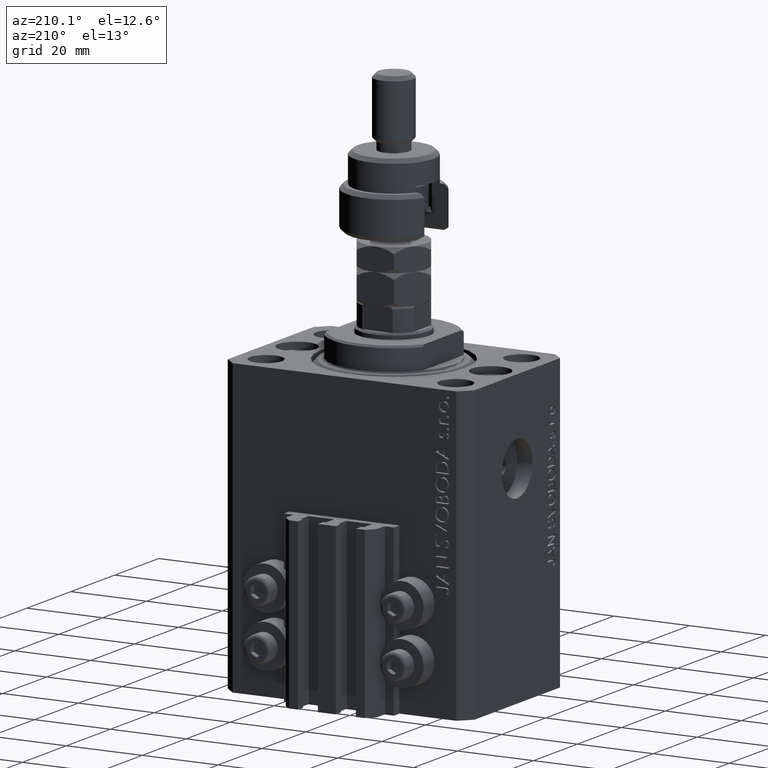
[diagram: clean part render]
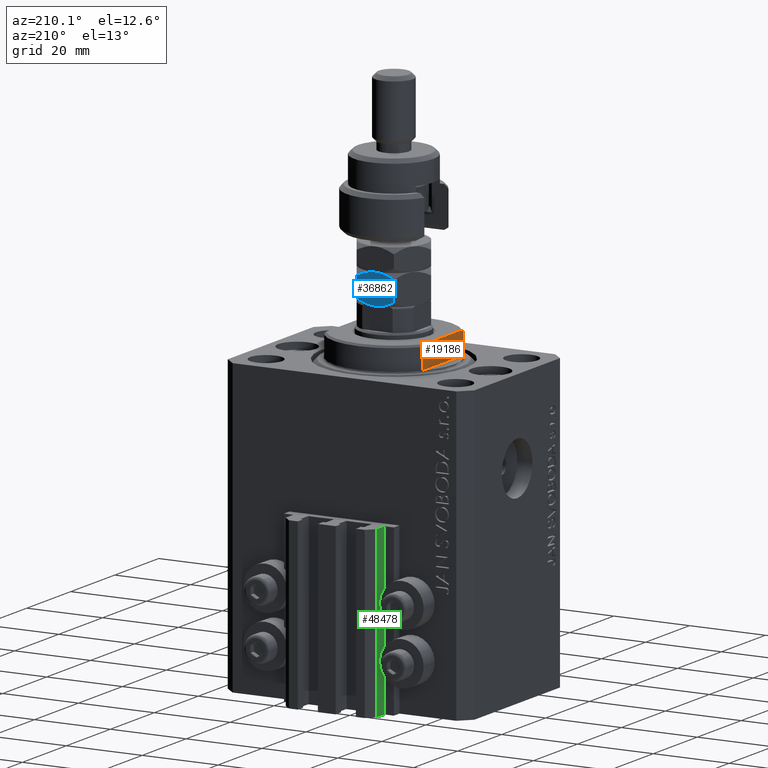
[diagram: same view with three faces highlighted in distinct colors, each labeled with its STEP entity id]
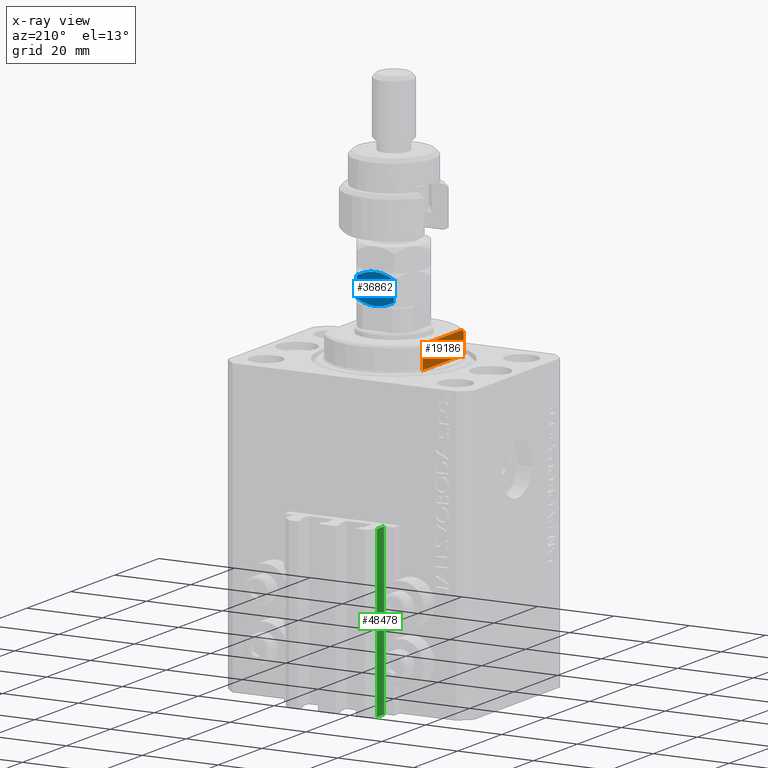
[diagram: x-ray of the same camera — body ghosted, the three highlighted faces saturated]
A machine part, auxiliary view with three faces highlighted in distinct colors.
The next image is the same camera in x-ray (body ghosted, the three faces saturated) — at least one of them is partly hidden behind the body in this view.
Their STEP definitions:

[orange] entity #19186 — the highlighted planar face has unit normal (-1, 0, 0).
#354 = CARTESIAN_POINT ( 'NONE',  ( 13.00000000000000000, -43.08131845707602992, -0.4999999999999995559 ) ) ;
#688 = VERTEX_POINT ( 'NONE', #28903 ) ;
#1208 = CARTESIAN_POINT ( 'NONE',  ( 13.00000000000000000, -9.327379053088815652, -6.000000000000030198 ) ) ;
#1632 = VECTOR ( 'NONE', #17485, 1000.000000000000000 ) ;
#4582 = CARTESIAN_POINT ( 'NONE',  ( 13.00000000000000000, -8.440971508067137918, -6.500000000000000000 ) ) ;
#6574 = CARTESIAN_POINT ( 'NONE',  ( 13.00000000000000000, -9.034292940839595332, -6.170857829009071871 ) ) ;
#7661 = LINE ( 'NONE', #23116, #10543 ) ;
#9709 = AXIS2_PLACEMENT_3D ( 'NONE', #43883, #28729, #43138 ) ;
#9865 = CARTESIAN_POINT ( 'NONE',  ( 13.00000000000000000, -9.327379053088815652, -6.000000000000030198 ) ) ;
#10543 = VECTOR ( 'NONE', #46363, 1000.000000000000000 ) ;
#13291 = CARTESIAN_POINT ( 'NONE',  ( 13.00000000000000000, 9.327379053088815652, -0.4999999999999995559 ) ) ;
#14309 = EDGE_CURVE ( 'NONE', #15881, #24672, #31762, .T. ) ;
#14522 = CARTESIAN_POINT ( 'NONE',  ( 13.00000000000000000, 8.738667591047022398, -6.337881022290552835 ) ) ;
#15881 = VERTEX_POINT ( 'NONE', #13291 ) ;
#15995 = EDGE_CURVE ( 'NONE', #688, #29632, #26341, .T. ) ;
#17485 = DIRECTION ( 'NONE',  ( 0.000000000000000000, -1.000000000000000000, -0.000000000000000000 ) ) ;
#19186 = ADVANCED_FACE ( 'NONE', ( #36066 ), #39605, .T. ) ;
#19289 = CARTESIAN_POINT ( 'NONE',  ( 13.00000000000000000, 9.327379053088813876, -6.500000000000000000 ) ) ;
#19475 = EDGE_CURVE ( 'NONE', #24672, #33529, #7661, .T. ) ;
#20022 = CARTESIAN_POINT ( 'NONE',  ( 13.00000000000000000, -8.738941625005656633, -6.337731789204291033 ) ) ;
#20787 = ORIENTED_EDGE ( 'NONE', *, *, #37887, .T. ) ;
#23116 = CARTESIAN_POINT ( 'NONE',  ( 13.00000000000000000, -9.327379053088813876, -6.500000000000000000 ) ) ;
#23145 = CARTESIAN_POINT ( 'NONE',  ( 13.00000000000000000, -8.440971508067137918, -6.500000000000000000 ) ) ;
#24672 = VERTEX_POINT ( 'NONE', #28682 ) ;
#26327 = EDGE_LOOP ( 'NONE', ( #20787, #32521, #42665, #47811, #49621, #35645 ) ) ;
#26341 = B_SPLINE_CURVE_WITH_KNOTS ( 'NONE', 3,
 ( #49173, #33045, #14522, #40627 ),
 .UNSPECIFIED., .F., .F.,
 ( 4, 4 ),
 ( 0.03031084603841415620, 0.03132841702658697297 ),
 .UNSPECIFIED. ) ;
#28682 = CARTESIAN_POINT ( 'NONE',  ( 13.00000000000000000, -9.327379053088815652, -0.4999999999999995559 ) ) ;
#28729 = DIRECTION ( 'NONE',  ( 1.000000000000000000, 0.000000000000000000, -0.000000000000000000 ) ) ;
#28903 = CARTESIAN_POINT ( 'NONE',  ( 13.00000000000000000, 9.327379053088916905, -6.000000000000021316 ) ) ;
#29632 = VERTEX_POINT ( 'NONE', #35983 ) ;
#31762 = LINE ( 'NONE', #354, #49142 ) ;
#32176 = VECTOR ( 'NONE', #34740, 1000.000000000000000 ) ;
#32521 = ORIENTED_EDGE ( 'NONE', *, *, #14309, .T. ) ;
#33045 = CARTESIAN_POINT ( 'NONE',  ( 13.00000000000000000, 9.034035639617135516, -6.171007825636153576 ) ) ;
#33529 = VERTEX_POINT ( 'NONE', #1208 ) ;
#34740 = DIRECTION ( 'NONE',  ( -0.000000000000000000, -0.000000000000000000, 1.000000000000000000 ) ) ;
#35645 = ORIENTED_EDGE ( 'NONE', *, *, #15995, .F. ) ;
#35793 = DIRECTION ( 'NONE',  ( 0.000000000000000000, -1.000000000000000000, -0.000000000000000000 ) ) ;
#35983 = CARTESIAN_POINT ( 'NONE',  ( 13.00000000000000000, 8.440971508067137918, -6.500000000000000000 ) ) ;
#36066 = FACE_OUTER_BOUND ( 'NONE', #26327, .T. ) ;
#36812 = B_SPLINE_CURVE_WITH_KNOTS ( 'NONE', 3,
 ( #4582, #20022, #6574, #9865 ),
 .UNSPECIFIED., .F., .F.,
 ( 4, 4 ),
 ( 0.04915043732154494860, 0.05017913261572036487 ),
 .UNSPECIFIED. ) ;
#37887 = EDGE_CURVE ( 'NONE', #688, #15881, #38517, .T. ) ;
#38517 = LINE ( 'NONE', #19289, #32176 ) ;
#39605 = PLANE ( 'NONE',  #9709 ) ;
#40273 = LINE ( 'NONE', #47351, #1632 ) ;
#40627 = CARTESIAN_POINT ( 'NONE',  ( 13.00000000000000000, 8.440971508067137918, -6.500000000000000000 ) ) ;
#42665 = ORIENTED_EDGE ( 'NONE', *, *, #19475, .T. ) ;
#43138 = DIRECTION ( 'NONE',  ( -0.000000000000000000, 0.000000000000000000, -1.000000000000000000 ) ) ;
#43473 = EDGE_CURVE ( 'NONE', #29632, #48466, #40273, .T. ) ;
#43883 = CARTESIAN_POINT ( 'NONE',  ( 13.00000000000000000, -43.08131845707602992, -0.4999999999999995559 ) ) ;
#46363 = DIRECTION ( 'NONE',  ( 0.000000000000000000, 0.000000000000000000, -1.000000000000000000 ) ) ;
#47351 = CARTESIAN_POINT ( 'NONE',  ( 13.00000000000000000, -43.08131845707602992, -6.500000000000000000 ) ) ;
#47483 = EDGE_CURVE ( 'NONE', #48466, #33529, #36812, .T. ) ;
#47811 = ORIENTED_EDGE ( 'NONE', *, *, #47483, .F. ) ;
#48466 = VERTEX_POINT ( 'NONE', #23145 ) ;
#49142 = VECTOR ( 'NONE', #35793, 1000.000000000000000 ) ;
#49173 = CARTESIAN_POINT ( 'NONE',  ( 13.00000000000000000, 9.327379053088916905, -6.000000000000021316 ) ) ;
#49621 = ORIENTED_EDGE ( 'NONE', *, *, #43473, .F. ) ;

[blue] entity #36862 — the highlighted planar face has unit normal (0, -1, 0).
#972 = EDGE_CURVE ( 'NONE', #14153, #40123, #23296, .T. ) ;
#1660 = CARTESIAN_POINT ( 'NONE',  ( -4.249999999999994671, 7.361215932167727516, 8.000000000000000000 ) ) ;
#2192 = CARTESIAN_POINT ( 'NONE',  ( -4.249999999999996447, 7.361215932167731957, 0.000000000000000000 ) ) ;
#2389 = CARTESIAN_POINT ( 'NONE',  ( -3.499970675361005590, 7.794245564648163871, 7.966263250401637741 ) ) ;
#2647 = CARTESIAN_POINT ( 'NONE',  ( 0.000000000000000000, 9.814954576223636096, 8.000000000000000000 ) ) ;
#3907 = CARTESIAN_POINT ( 'NONE',  ( -1.350892646810552433, 9.035016342941277756, 0.6009384127361191430 ) ) ;
#4696 = B_SPLINE_CURVE_WITH_KNOTS ( 'NONE', 3,
 ( #30759, #42378, #23156, #3907, #17237, #25331 ),
 .UNSPECIFIED., .F., .F.,
 ( 4, 2, 4 ),
 ( 0.005087299150080244227, 0.007613005268011861781, 0.01013871138594347847 ),
 .UNSPECIFIED. ) ;
#5675 = CARTESIAN_POINT ( 'NONE',  ( -4.249999999999994671, 7.361215932167727516, 8.000000000000000000 ) ) ;
#6735 = CARTESIAN_POINT ( 'NONE',  ( -8.500000000000001776, 4.907477288111821601, 1.314954576223634097 ) ) ;
#9482 = CARTESIAN_POINT ( 'NONE',  ( -2.175848833159079736E-16, 9.814954576223636096, 6.685045423776372786 ) ) ;
#9524 = CARTESIAN_POINT ( 'NONE',  ( 1.960053746949402388E-16, 9.814954576223636096, 1.314954576223628546 ) ) ;
#9980 = CARTESIAN_POINT ( 'NONE',  ( -2.407069963478076779, 8.425232084851307590, 7.746375910675348919 ) ) ;
#10610 = EDGE_CURVE ( 'NONE', #14153, #22663, #17318, .T. ) ;
#10666 = EDGE_CURVE ( 'NONE', #31144, #34372, #40370, .T. ) ;
#10735 = PLANE ( 'NONE',  #22431 ) ;
#11025 = CARTESIAN_POINT ( 'NONE',  ( -7.151994807070144233, 5.685748449118888104, 0.6032092124201268168 ) ) ;
#11562 = VECTOR ( 'NONE', #47048, 1000.000000000000000 ) ;
#11894 = VECTOR ( 'NONE', #13523, 1000.000000000000000 ) ;
#13523 = DIRECTION ( 'NONE',  ( -0.000000000000000000, -0.000000000000000000, -1.000000000000000000 ) ) ;
#14075 = CARTESIAN_POINT ( 'NONE',  ( -5.733718739115173157, 6.504590518737894733, 0.1608217079418319817 ) ) ;
#14153 = VERTEX_POINT ( 'NONE', #37080 ) ;
#14549 = CARTESIAN_POINT ( 'NONE',  ( -4.989245346831672201, 6.934412432177284202, 8.000000000000005329 ) ) ;
#15303 = CARTESIAN_POINT ( 'NONE',  ( -8.500000000000001776, 4.907477288111821601, 6.685045423776368345 ) ) ;
#17237 = CARTESIAN_POINT ( 'NONE',  ( -0.6656893889372521578, 9.430618628324037189, 0.9306186283239277213 ) ) ;
#17318 = B_SPLINE_CURVE_WITH_KNOTS ( 'NONE', 3,
 ( #9482, #21138, #37068, #9980, #20887, #2389, #28750, #1660 ),
 .UNSPECIFIED., .F., .F.,
 ( 4, 2, 2, 4 ),
 ( 2.544313836662431582E-07, 0.002543776790731950600, 0.003815537970406090908, 0.005087299150080232084 ),
 .UNSPECIFIED. ) ;
#17335 = EDGE_LOOP ( 'NONE', ( #41702, #18346, #27176, #17498, #32888, #47565 ) ) ;
#17498 = ORIENTED_EDGE ( 'NONE', *, *, #10610, .F. ) ;
#18346 = ORIENTED_EDGE ( 'NONE', *, *, #10666, .F. ) ;
#20887 = CARTESIAN_POINT ( 'NONE',  ( -2.766281260884825510, 8.217841345597568292, 7.839178292058173625 ) ) ;
#20927 = VERTEX_POINT ( 'NONE', #41517 ) ;
#21138 = CARTESIAN_POINT ( 'NONE',  ( -0.6664608216042845479, 9.430173241466064837, 7.069826758533944044 ) ) ;
#21400 = DIRECTION ( 'NONE',  ( 0.8660254037844389297, 0.4999999999999995559, 0.000000000000000000 ) ) ;
#21933 = CARTESIAN_POINT ( 'NONE',  ( -6.092930036521920556, 6.297199779484152771, 0.2536240893246534123 ) ) ;
#22431 = AXIS2_PLACEMENT_3D ( 'NONE', #2647, #26185, #21400 ) ;
#22663 = VERTEX_POINT ( 'NONE', #5675 ) ;
#23156 = CARTESIAN_POINT ( 'NONE',  ( -2.784079206026081721, 8.207565697179243003, 0.1305202873832130295 ) ) ;
#23296 = LINE ( 'NONE', #38978, #11562 ) ;
#25331 = CARTESIAN_POINT ( 'NONE',  ( 1.960053746949402388E-16, 9.814954576223636096, 1.314954576223628546 ) ) ;
#26185 = DIRECTION ( 'NONE',  ( 0.4999999999999995559, -0.8660254037844389297, 0.000000000000000000 ) ) ;
#26475 = CARTESIAN_POINT ( 'NONE',  ( -7.833539178395718672, 5.292258622869395523, 0.9301732414660626169 ) ) ;
#27176 = ORIENTED_EDGE ( 'NONE', *, *, #49775, .F. ) ;
#28750 = CARTESIAN_POINT ( 'NONE',  ( -3.877770021349439045, 7.576123010542077374, 8.000000000000001776 ) ) ;
#29490 = CARTESIAN_POINT ( 'NONE',  ( -8.500000000000001776, 4.907477288111821601, 8.000000000000000000 ) ) ;
#30017 = CARTESIAN_POINT ( 'NONE',  ( -7.149107353189443792, 5.687415521394179940, 7.399061587263880746 ) ) ;
#30304 = B_SPLINE_CURVE_WITH_KNOTS ( 'NONE', 3,
 ( #49197, #14549, #42388, #30017, #41393, #15303 ),
 .UNSPECIFIED., .F., .F.,
 ( 4, 2, 4 ),
 ( 0.005087299150080232084, 0.007613005268011854842, 0.01013871138594347847 ),
 .UNSPECIFIED. ) ;
#30759 = CARTESIAN_POINT ( 'NONE',  ( -4.249999999999996447, 7.361215932167731957, 0.000000000000000000 ) ) ;
#31144 = VERTEX_POINT ( 'NONE', #42695 ) ;
#32888 = ORIENTED_EDGE ( 'NONE', *, *, #972, .T. ) ;
#33667 = EDGE_CURVE ( 'NONE', #34372, #20927, #37835, .T. ) ;
#34372 = VERTEX_POINT ( 'NONE', #49789 ) ;
#36862 = ADVANCED_FACE ( 'NONE', ( #41117 ), #10735, .F. ) ;
#37068 = CARTESIAN_POINT ( 'NONE',  ( -1.348005192929855323, 9.036683415216572257, 7.396790787579877069 ) ) ;
#37080 = CARTESIAN_POINT ( 'NONE',  ( -2.175848833159079736E-16, 9.814954576223636096, 6.685045423776372786 ) ) ;
#37835 = B_SPLINE_CURVE_WITH_KNOTS ( 'NONE', 3,
 ( #6735, #26475, #11025, #21933, #14075, #48479, #44689, #2192 ),
 .UNSPECIFIED., .F., .F.,
 ( 4, 2, 2, 4 ),
 ( 2.544313836674336100E-07, 0.002543776790731957973, 0.003815537970406101317, 0.005087299150080244227 ),
 .UNSPECIFIED. ) ;
#38978 = CARTESIAN_POINT ( 'NONE',  ( 0.000000000000000000, 9.814954576223636096, 8.000000000000000000 ) ) ;
#40123 = VERTEX_POINT ( 'NONE', #9524 ) ;
#40370 = LINE ( 'NONE', #29490, #11894 ) ;
#41117 = FACE_OUTER_BOUND ( 'NONE', #17335, .T. ) ;
#41393 = CARTESIAN_POINT ( 'NONE',  ( -7.834310611062749174, 5.291813236011422283, 7.069381371676069392 ) ) ;
#41462 = EDGE_CURVE ( 'NONE', #20927, #40123, #4696, .T. ) ;
#41517 = CARTESIAN_POINT ( 'NONE',  ( -4.249999999999996447, 7.361215932167731957, 0.000000000000000000 ) ) ;
#41702 = ORIENTED_EDGE ( 'NONE', *, *, #33667, .F. ) ;
#42378 = CARTESIAN_POINT ( 'NONE',  ( -3.510754653168324246, 7.788019432158175270, -2.226002585384300502E-15 ) ) ;
#42388 = CARTESIAN_POINT ( 'NONE',  ( -5.715920793973915615, 6.514866167156221799, 7.869479712616790579 ) ) ;
#42695 = CARTESIAN_POINT ( 'NONE',  ( -8.500000000000001776, 4.907477288111821601, 6.685045423776368345 ) ) ;
#44689 = CARTESIAN_POINT ( 'NONE',  ( -4.622229978650556070, 7.146308853793382987, -2.126899730555548151E-15 ) ) ;
#47048 = DIRECTION ( 'NONE',  ( -0.000000000000000000, -0.000000000000000000, -1.000000000000000000 ) ) ;
#47565 = ORIENTED_EDGE ( 'NONE', *, *, #41462, .F. ) ;
#48479 = CARTESIAN_POINT ( 'NONE',  ( -5.000029324638989081, 6.928186299687298266, 0.03373674959836554799 ) ) ;
#49197 = CARTESIAN_POINT ( 'NONE',  ( -4.249999999999994671, 7.361215932167727516, 8.000000000000000000 ) ) ;
#49775 = EDGE_CURVE ( 'NONE', #22663, #31144, #30304, .T. ) ;
#49789 = CARTESIAN_POINT ( 'NONE',  ( -8.500000000000001776, 4.907477288111821601, 1.314954576223634097 ) ) ;

[green] entity #48478 — the highlighted planar face has unit normal (-1, 0, 0).
#560 = EDGE_LOOP ( 'NONE', ( #24732, #35105, #7013, #19426 ) ) ;
#3001 = DIRECTION ( 'NONE',  ( 0.000000000000000000, 0.000000000000000000, 1.000000000000000000 ) ) ;
#5522 = CARTESIAN_POINT ( 'NONE',  ( -12.00000000000000000, 28.49999999999948841, -77.00000000000000000 ) ) ;
#5637 = FACE_OUTER_BOUND ( 'NONE', #560, .T. ) ;
#7013 = ORIENTED_EDGE ( 'NONE', *, *, #42237, .T. ) ;
#7429 = AXIS2_PLACEMENT_3D ( 'NONE', #28454, #13725, #43854 ) ;
#9036 = VECTOR ( 'NONE', #20967, 1000.000000000000000 ) ;
#10224 = EDGE_CURVE ( 'NONE', #12909, #10345, #49481, .T. ) ;
#10334 = VERTEX_POINT ( 'NONE', #15076 ) ;
#10345 = VERTEX_POINT ( 'NONE', #34839 ) ;
#11101 = CARTESIAN_POINT ( 'NONE',  ( -12.00000000000000000, 25.19999999999949125, -77.00000000000000000 ) ) ;
#11848 = VECTOR ( 'NONE', #3001, 1000.000000000000000 ) ;
#12271 = LINE ( 'NONE', #27721, #33153 ) ;
#12909 = VERTEX_POINT ( 'NONE', #13098 ) ;
#13098 = CARTESIAN_POINT ( 'NONE',  ( -12.00000000000000000, 28.49999999999948841, -33.00000000000000000 ) ) ;
#13725 = DIRECTION ( 'NONE',  ( -1.000000000000000000, 0.000000000000000000, 0.000000000000000000 ) ) ;
#14574 = CARTESIAN_POINT ( 'NONE',  ( -12.00000000000000000, 28.49999999999948841, -33.00000000000000000 ) ) ;
#15076 = CARTESIAN_POINT ( 'NONE',  ( -12.00000000000000000, 25.19999999999949125, -77.00000000000000000 ) ) ;
#16424 = LINE ( 'NONE', #5522, #9036 ) ;
#19426 = ORIENTED_EDGE ( 'NONE', *, *, #34424, .T. ) ;
#20967 = DIRECTION ( 'NONE',  ( 0.000000000000000000, 0.000000000000000000, 1.000000000000000000 ) ) ;
#24732 = ORIENTED_EDGE ( 'NONE', *, *, #10224, .F. ) ;
#26224 = EDGE_CURVE ( 'NONE', #31844, #12909, #16424, .T. ) ;
#26483 = DIRECTION ( 'NONE',  ( 0.000000000000000000, -1.000000000000000000, 0.000000000000000000 ) ) ;
#27721 = CARTESIAN_POINT ( 'NONE',  ( -12.00000000000000000, 28.49999999999948841, -77.00000000000000000 ) ) ;
#28454 = CARTESIAN_POINT ( 'NONE',  ( -12.00000000000000000, 28.49999999999948841, -77.00000000000000000 ) ) ;
#31844 = VERTEX_POINT ( 'NONE', #40285 ) ;
#33153 = VECTOR ( 'NONE', #43127, 1000.000000000000000 ) ;
#34424 = EDGE_CURVE ( 'NONE', #10334, #10345, #41481, .T. ) ;
#34839 = CARTESIAN_POINT ( 'NONE',  ( -12.00000000000000000, 25.19999999999949125, -33.00000000000000000 ) ) ;
#35105 = ORIENTED_EDGE ( 'NONE', *, *, #26224, .F. ) ;
#36897 = VECTOR ( 'NONE', #26483, 1000.000000000000000 ) ;
#40285 = CARTESIAN_POINT ( 'NONE',  ( -12.00000000000000000, 28.49999999999948841, -77.00000000000000000 ) ) ;
#41481 = LINE ( 'NONE', #11101, #11848 ) ;
#42237 = EDGE_CURVE ( 'NONE', #31844, #10334, #12271, .T. ) ;
#43127 = DIRECTION ( 'NONE',  ( 0.000000000000000000, -1.000000000000000000, 0.000000000000000000 ) ) ;
#43854 = DIRECTION ( 'NONE',  ( 0.000000000000000000, 0.000000000000000000, 1.000000000000000000 ) ) ;
#48130 = PLANE ( 'NONE',  #7429 ) ;
#48478 = ADVANCED_FACE ( 'NONE', ( #5637 ), #48130, .T. ) ;
#49481 = LINE ( 'NONE', #14574, #36897 ) ;